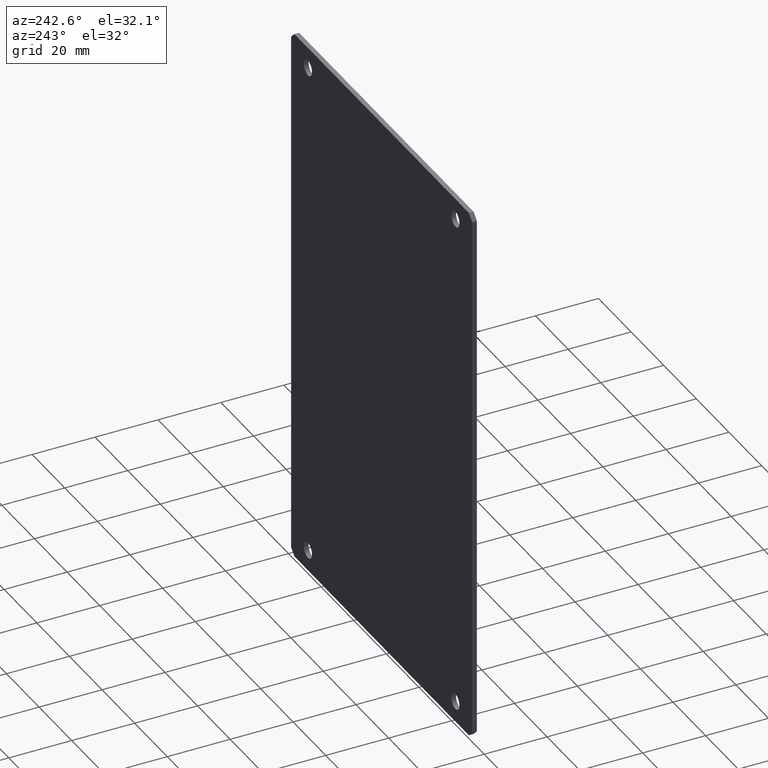
[diagram: clean part render]
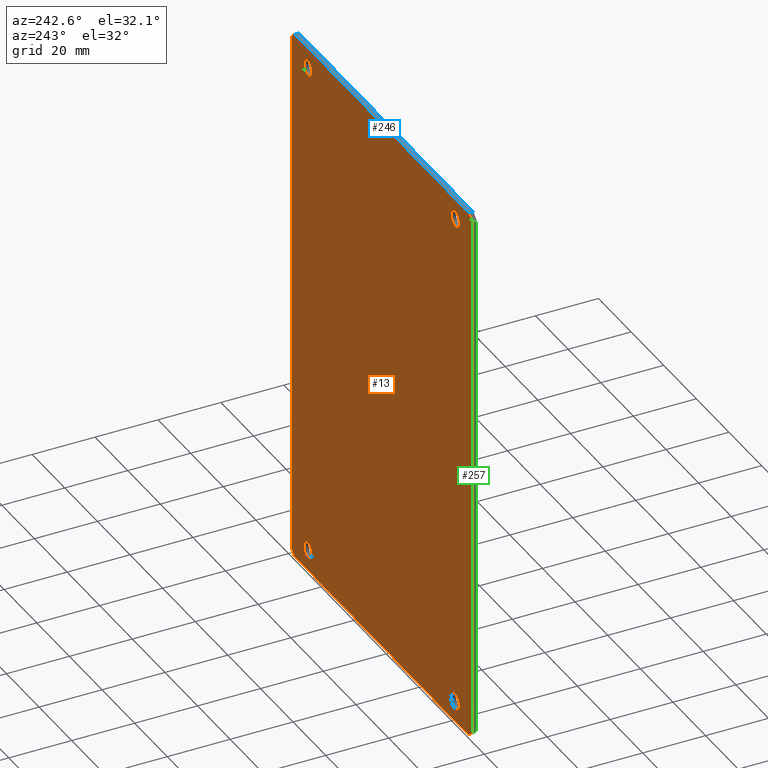
[diagram: same view with three faces highlighted in distinct colors, each labeled with its STEP entity id]
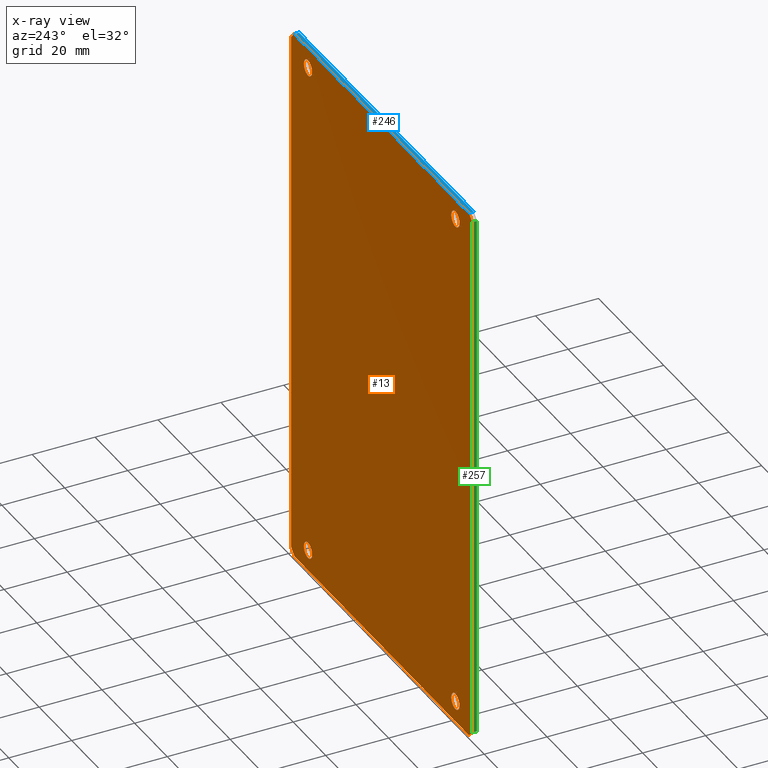
[diagram: x-ray of the same camera — body ghosted, the three highlighted faces saturated]
A machine part, auxiliary view with three faces highlighted in distinct colors.
The next image is the same camera in x-ray (body ghosted, the three faces saturated) — at least one of them is partly hidden behind the body in this view.
Their STEP definitions:

[orange] entity #13 — the highlighted planar face has unit normal (0, -1, 0).
#13 = ADVANCED_FACE ( 'NONE', ( #319, #318, #317, #316, #315 ), #311, .F. ) ;
#14 = EDGE_LOOP ( 'NONE', ( #15, #16 ) ) ;
#15 = ORIENTED_EDGE ( 'NONE', *, *, #35, .F. ) ;
#16 = ORIENTED_EDGE ( 'NONE', *, *, #17, .F. ) ;
#17 = EDGE_CURVE ( 'NONE', #37, #36, #144, .T. ) ;
#18 = EDGE_LOOP ( 'NONE', ( #181, #182 ) ) ;
#19 = ORIENTED_EDGE ( 'NONE', *, *, #64, .F. ) ;
#20 = ORIENTED_EDGE ( 'NONE', *, *, #21, .F. ) ;
#21 = EDGE_CURVE ( 'NONE', #65, #66, #140, .T. ) ;
#22 = EDGE_LOOP ( 'NONE', ( #23, #24 ) ) ;
#23 = ORIENTED_EDGE ( 'NONE', *, *, #41, .F. ) ;
#24 = ORIENTED_EDGE ( 'NONE', *, *, #25, .F. ) ;
#25 = EDGE_CURVE ( 'NONE', #54, #42, #135, .T. ) ;
#35 = EDGE_CURVE ( 'NONE', #36, #37, #96, .T. ) ;
#36 = VERTEX_POINT ( 'NONE', #91 ) ;
#37 = VERTEX_POINT ( 'NONE', #90 ) ;
#41 = EDGE_CURVE ( 'NONE', #42, #54, #83, .T. ) ;
#42 = VERTEX_POINT ( 'NONE', #78 ) ;
#54 = VERTEX_POINT ( 'NONE', #341 ) ;
#64 = EDGE_CURVE ( 'NONE', #66, #65, #357, .T. ) ;
#65 = VERTEX_POINT ( 'NONE', #352 ) ;
#66 = VERTEX_POINT ( 'NONE', #351 ) ;
#78 = CARTESIAN_POINT ( 'NONE',  ( -45.19999999999944900, 1.500000000000000000, 77.84999999999992300 ) ) ;
#79 = DIRECTION ( 'NONE',  ( 0.0000000000000000000, 0.0000000000000000000, -1.000000000000000000 ) ) ;
#80 = DIRECTION ( 'NONE',  ( -0.0000000000000000000, 1.000000000000000000, -0.0000000000000000000 ) ) ;
#81 = CARTESIAN_POINT ( 'NONE',  ( -45.19999999999944900, 1.500000000000000000, 80.34999999999992300 ) ) ;
#82 = AXIS2_PLACEMENT_3D ( 'NONE', #81, #80, #79 ) ;
#83 = CIRCLE ( 'NONE', #82, 2.500000000000002200 ) ;
#90 = CARTESIAN_POINT ( 'NONE',  ( 45.20000000000001000, 1.500000000000000000, 82.84999999999963900 ) ) ;
#91 = CARTESIAN_POINT ( 'NONE',  ( 45.20000000000001000, 1.500000000000000000, 77.84999999999959600 ) ) ;
#92 = DIRECTION ( 'NONE',  ( 0.0000000000000000000, 0.0000000000000000000, 1.000000000000000000 ) ) ;
#93 = DIRECTION ( 'NONE',  ( 0.0000000000000000000, 1.000000000000000000, 0.0000000000000000000 ) ) ;
#94 = CARTESIAN_POINT ( 'NONE',  ( 45.20000000000001000, 1.500000000000000000, 80.34999999999961100 ) ) ;
#95 = AXIS2_PLACEMENT_3D ( 'NONE', #94, #93, #92 ) ;
#96 = CIRCLE ( 'NONE', #95, 2.500000000000016000 ) ;
#131 = DIRECTION ( 'NONE',  ( 0.0000000000000000000, 0.0000000000000000000, -1.000000000000000000 ) ) ;
#132 = DIRECTION ( 'NONE',  ( -0.0000000000000000000, 1.000000000000000000, -0.0000000000000000000 ) ) ;
#133 = CARTESIAN_POINT ( 'NONE',  ( -45.19999999999944900, 1.500000000000000000, 80.34999999999992300 ) ) ;
#134 = AXIS2_PLACEMENT_3D ( 'NONE', #133, #132, #131 ) ;
#135 = CIRCLE ( 'NONE', #134, 2.500000000000002200 ) ;
#136 = DIRECTION ( 'NONE',  ( 0.0000000000000000000, 0.0000000000000000000, -1.000000000000000000 ) ) ;
#137 = DIRECTION ( 'NONE',  ( -0.0000000000000000000, 1.000000000000000000, -0.0000000000000000000 ) ) ;
#138 = CARTESIAN_POINT ( 'NONE',  ( 45.19999999999944900, 1.500000000000000000, -80.35000000000027900 ) ) ;
#139 = AXIS2_PLACEMENT_3D ( 'NONE', #138, #137, #136 ) ;
#140 = CIRCLE ( 'NONE', #139, 2.500000000000016000 ) ;
#141 = DIRECTION ( 'NONE',  ( 0.0000000000000000000, 0.0000000000000000000, 1.000000000000000000 ) ) ;
#142 = DIRECTION ( 'NONE',  ( 0.0000000000000000000, 1.000000000000000000, 0.0000000000000000000 ) ) ;
#143 = AXIS2_PLACEMENT_3D ( 'NONE', #312, #142, #141 ) ;
#144 = CIRCLE ( 'NONE', #143, 2.500000000000016000 ) ;
#145 = DIRECTION ( 'NONE',  ( 0.0000000000000000000, -0.0000000000000000000, -1.000000000000000000 ) ) ;
#146 = DIRECTION ( 'NONE',  ( 0.0000000000000000000, -1.000000000000000000, 0.0000000000000000000 ) ) ;
#154 = ORIENTED_EDGE ( 'NONE', *, *, #210, .T. ) ;
#178 = EDGE_CURVE ( 'NONE', #179, #180, #454, .T. ) ;
#179 = VERTEX_POINT ( 'NONE', #444 ) ;
#180 = VERTEX_POINT ( 'NONE', #443 ) ;
#181 = ORIENTED_EDGE ( 'NONE', *, *, #178, .F. ) ;
#182 = ORIENTED_EDGE ( 'NONE', *, *, #183, .F. ) ;
#183 = EDGE_CURVE ( 'NONE', #180, #179, #441, .T. ) ;
#184 = EDGE_LOOP ( 'NONE', ( #185, #189, #192, #154, #212, #215, #218, #221 ) ) ;
#185 = ORIENTED_EDGE ( 'NONE', *, *, #186, .T. ) ;
#186 = EDGE_CURVE ( 'NONE', #187, #188, #436, .T. ) ;
#187 = VERTEX_POINT ( 'NONE', #433 ) ;
#188 = VERTEX_POINT ( 'NONE', #432 ) ;
#189 = ORIENTED_EDGE ( 'NONE', *, *, #190, .T. ) ;
#190 = EDGE_CURVE ( 'NONE', #188, #191, #431, .T. ) ;
#191 = VERTEX_POINT ( 'NONE', #427 ) ;
#192 = ORIENTED_EDGE ( 'NONE', *, *, #193, .T. ) ;
#193 = EDGE_CURVE ( 'NONE', #191, #194, #426, .T. ) ;
#194 = VERTEX_POINT ( 'NONE', #390 ) ;
#210 = EDGE_CURVE ( 'NONE', #194, #211, #425, .T. ) ;
#211 = VERTEX_POINT ( 'NONE', #421 ) ;
#212 = ORIENTED_EDGE ( 'NONE', *, *, #213, .T. ) ;
#213 = EDGE_CURVE ( 'NONE', #211, #214, #420, .T. ) ;
#214 = VERTEX_POINT ( 'NONE', #416 ) ;
#215 = ORIENTED_EDGE ( 'NONE', *, *, #216, .T. ) ;
#216 = EDGE_CURVE ( 'NONE', #214, #217, #415, .T. ) ;
#217 = VERTEX_POINT ( 'NONE', #411 ) ;
#218 = ORIENTED_EDGE ( 'NONE', *, *, #219, .T. ) ;
#219 = EDGE_CURVE ( 'NONE', #217, #220, #410, .T. ) ;
#220 = VERTEX_POINT ( 'NONE', #406 ) ;
#221 = ORIENTED_EDGE ( 'NONE', *, *, #222, .T. ) ;
#222 = EDGE_CURVE ( 'NONE', #220, #187, #405, .T. ) ;
#223 = EDGE_LOOP ( 'NONE', ( #19, #20 ) ) ;
#311 = PLANE ( 'NONE',  #314 ) ;
#312 = CARTESIAN_POINT ( 'NONE',  ( 45.20000000000001000, 1.500000000000000000, 80.34999999999961100 ) ) ;
#313 = CARTESIAN_POINT ( 'NONE',  ( -140.5000000000003100, 1.500000000000000000, 8.743006318923107800E-013 ) ) ;
#314 = AXIS2_PLACEMENT_3D ( 'NONE', #313, #146, #145 ) ;
#315 = FACE_BOUND ( 'NONE', #22, .T. ) ;
#316 = FACE_BOUND ( 'NONE', #223, .T. ) ;
#317 = FACE_OUTER_BOUND ( 'NONE', #184, .T. ) ;
#318 = FACE_BOUND ( 'NONE', #18, .T. ) ;
#319 = FACE_BOUND ( 'NONE', #14, .T. ) ;
#341 = CARTESIAN_POINT ( 'NONE',  ( -45.19999999999944900, 1.500000000000000000, 82.84999999999992300 ) ) ;
#351 = CARTESIAN_POINT ( 'NONE',  ( 45.19999999999944900, 1.500000000000000000, -82.85000000000029300 ) ) ;
#352 = CARTESIAN_POINT ( 'NONE',  ( 45.19999999999944900, 1.500000000000000000, -77.85000000000026400 ) ) ;
#353 = DIRECTION ( 'NONE',  ( 0.0000000000000000000, 0.0000000000000000000, -1.000000000000000000 ) ) ;
#354 = DIRECTION ( 'NONE',  ( -0.0000000000000000000, 1.000000000000000000, -0.0000000000000000000 ) ) ;
#355 = CARTESIAN_POINT ( 'NONE',  ( 45.19999999999944900, 1.500000000000000000, -80.35000000000027900 ) ) ;
#356 = AXIS2_PLACEMENT_3D ( 'NONE', #355, #354, #353 ) ;
#357 = CIRCLE ( 'NONE', #356, 2.500000000000016000 ) ;
#390 = CARTESIAN_POINT ( 'NONE',  ( -53.49999999999938900, 1.500000000000000000, 87.00000000000000000 ) ) ;
#391 = DIRECTION ( 'NONE',  ( 0.7071067811865549000, 0.0000000000000000000, 0.7071067811865402500 ) ) ;
#392 = VECTOR ( 'NONE', #391, 1000.000000000000100 ) ;
#393 = CARTESIAN_POINT ( 'NONE',  ( -55.49999999999941700, 1.500000000000000000, 85.00000000000000000 ) ) ;
#402 = DIRECTION ( 'NONE',  ( -1.000000000000000000, 0.0000000000000000000, 3.372172738347457500E-015 ) ) ;
#403 = VECTOR ( 'NONE', #402, 1000.000000000000000 ) ;
#404 = CARTESIAN_POINT ( 'NONE',  ( 53.49999999999938900, 1.500000000000000000, -87.00000000000035500 ) ) ;
#405 = LINE ( 'NONE', #404, #403 ) ;
#406 = CARTESIAN_POINT ( 'NONE',  ( 53.49999999999938900, 1.500000000000000000, -87.00000000000035500 ) ) ;
#407 = DIRECTION ( 'NONE',  ( -0.7071067811865549000, 0.0000000000000000000, -0.7071067811865401300 ) ) ;
#408 = VECTOR ( 'NONE', #407, 1000.000000000000000 ) ;
#409 = CARTESIAN_POINT ( 'NONE',  ( 55.49999999999940300, 1.500000000000000000, -85.00000000000038400 ) ) ;
#410 = LINE ( 'NONE', #409, #408 ) ;
#411 = CARTESIAN_POINT ( 'NONE',  ( 55.49999999999940300, 1.500000000000000000, -85.00000000000038400 ) ) ;
#412 = DIRECTION ( 'NONE',  ( -3.510263974917773900E-015, 0.0000000000000000000, -1.000000000000000000 ) ) ;
#413 = VECTOR ( 'NONE', #412, 1000.000000000000000 ) ;
#414 = CARTESIAN_POINT ( 'NONE',  ( 55.50000000000000000, 1.500000000000000000, 84.99999999999963100 ) ) ;
#415 = LINE ( 'NONE', #414, #413 ) ;
#416 = CARTESIAN_POINT ( 'NONE',  ( 55.50000000000000000, 1.500000000000000000, 84.99999999999963100 ) ) ;
#417 = DIRECTION ( 'NONE',  ( 0.7071067811865474600, -0.0000000000000000000, -0.7071067811865474600 ) ) ;
#418 = VECTOR ( 'NONE', #417, 1000.000000000000100 ) ;
#419 = CARTESIAN_POINT ( 'NONE',  ( 55.50000000000000000, 1.500000000000000000, 84.99999999999963100 ) ) ;
#420 = LINE ( 'NONE', #419, #418 ) ;
#421 = CARTESIAN_POINT ( 'NONE',  ( 53.49999999999963800, 1.500000000000000000, 87.00000000000000000 ) ) ;
#422 = DIRECTION ( 'NONE',  ( 1.000000000000000000, -0.0000000000000000000, -0.0000000000000000000 ) ) ;
#423 = VECTOR ( 'NONE', #422, 1000.000000000000000 ) ;
#424 = CARTESIAN_POINT ( 'NONE',  ( 53.49999999999963800, 1.500000000000000000, 87.00000000000000000 ) ) ;
#425 = LINE ( 'NONE', #424, #423 ) ;
#426 = LINE ( 'NONE', #393, #392 ) ;
#427 = CARTESIAN_POINT ( 'NONE',  ( -55.49999999999941700, 1.500000000000000000, 85.00000000000000000 ) ) ;
#428 = DIRECTION ( 'NONE',  ( 3.428629928989454100E-015, -0.0000000000000000000, 1.000000000000000000 ) ) ;
#429 = VECTOR ( 'NONE', #428, 1000.000000000000000 ) ;
#430 = CARTESIAN_POINT ( 'NONE',  ( -55.49999999999941700, 1.500000000000000000, 85.00000000000000000 ) ) ;
#431 = LINE ( 'NONE', #430, #429 ) ;
#432 = CARTESIAN_POINT ( 'NONE',  ( -55.50000000000000000, 1.500000000000000000, -84.99999999999997200 ) ) ;
#433 = CARTESIAN_POINT ( 'NONE',  ( -53.50000000000000000, 1.500000000000000000, -87.00000000000000000 ) ) ;
#434 = DIRECTION ( 'NONE',  ( -0.7071067811865451300, -0.0000000000000000000, 0.7071067811865500200 ) ) ;
#435 = VECTOR ( 'NONE', #434, 1000.000000000000100 ) ;
#436 = LINE ( 'NONE', #442, #435 ) ;
#437 = DIRECTION ( 'NONE',  ( 0.0000000000000000000, 0.0000000000000000000, 1.000000000000000000 ) ) ;
#438 = DIRECTION ( 'NONE',  ( 0.0000000000000000000, 1.000000000000000000, 0.0000000000000000000 ) ) ;
#439 = CARTESIAN_POINT ( 'NONE',  ( -45.20000000000000300, 1.500000000000000000, -80.34999999999998000 ) ) ;
#440 = AXIS2_PLACEMENT_3D ( 'NONE', #439, #438, #437 ) ;
#441 = CIRCLE ( 'NONE', #440, 2.500000000000002200 ) ;
#442 = CARTESIAN_POINT ( 'NONE',  ( -55.50000000000000000, 1.500000000000000000, -84.99999999999997200 ) ) ;
#443 = CARTESIAN_POINT ( 'NONE',  ( -45.20000000000000300, 1.500000000000000000, -77.84999999999998000 ) ) ;
#444 = CARTESIAN_POINT ( 'NONE',  ( -45.20000000000000300, 1.500000000000000000, -82.84999999999998000 ) ) ;
#445 = DIRECTION ( 'NONE',  ( 0.0000000000000000000, 0.0000000000000000000, 1.000000000000000000 ) ) ;
#446 = DIRECTION ( 'NONE',  ( 0.0000000000000000000, 1.000000000000000000, 0.0000000000000000000 ) ) ;
#447 = CARTESIAN_POINT ( 'NONE',  ( -45.20000000000000300, 1.500000000000000000, -80.34999999999998000 ) ) ;
#448 = AXIS2_PLACEMENT_3D ( 'NONE', #447, #446, #445 ) ;
#454 = CIRCLE ( 'NONE', #448, 2.500000000000002200 ) ;

[blue] entity #246 — the highlighted planar face has unit normal (0, 0, -1).
#194 = VERTEX_POINT ( 'NONE', #390 ) ;
#210 = EDGE_CURVE ( 'NONE', #194, #211, #425, .T. ) ;
#211 = VERTEX_POINT ( 'NONE', #421 ) ;
#228 = VERTEX_POINT ( 'NONE', #583 ) ;
#230 = EDGE_CURVE ( 'NONE', #231, #228, #582, .T. ) ;
#231 = VERTEX_POINT ( 'NONE', #578 ) ;
#243 = EDGE_CURVE ( 'NONE', #194, #231, #568, .T. ) ;
#246 = ADVANCED_FACE ( 'NONE', ( #564 ), #562, .F. ) ;
#247 = EDGE_LOOP ( 'NONE', ( #248, #249, #251, #252 ) ) ;
#248 = ORIENTED_EDGE ( 'NONE', *, *, #230, .T. ) ;
#249 = ORIENTED_EDGE ( 'NONE', *, *, #250, .F. ) ;
#250 = EDGE_CURVE ( 'NONE', #211, #228, #563, .T. ) ;
#251 = ORIENTED_EDGE ( 'NONE', *, *, #210, .F. ) ;
#252 = ORIENTED_EDGE ( 'NONE', *, *, #243, .T. ) ;
#390 = CARTESIAN_POINT ( 'NONE',  ( -53.49999999999938900, 1.500000000000000000, 87.00000000000000000 ) ) ;
#421 = CARTESIAN_POINT ( 'NONE',  ( 53.49999999999963800, 1.500000000000000000, 87.00000000000000000 ) ) ;
#422 = DIRECTION ( 'NONE',  ( 1.000000000000000000, -0.0000000000000000000, -0.0000000000000000000 ) ) ;
#423 = VECTOR ( 'NONE', #422, 1000.000000000000000 ) ;
#424 = CARTESIAN_POINT ( 'NONE',  ( 53.49999999999963800, 1.500000000000000000, 87.00000000000000000 ) ) ;
#425 = LINE ( 'NONE', #424, #423 ) ;
#555 = DIRECTION ( 'NONE',  ( -0.0000000000000000000, -1.000000000000000000, -0.0000000000000000000 ) ) ;
#556 = VECTOR ( 'NONE', #555, 1000.000000000000000 ) ;
#557 = CARTESIAN_POINT ( 'NONE',  ( 53.49999999999963800, 1.500000000000000000, 87.00000000000000000 ) ) ;
#558 = DIRECTION ( 'NONE',  ( -1.000000000000000000, 0.0000000000000000000, -0.0000000000000000000 ) ) ;
#559 = DIRECTION ( 'NONE',  ( 0.0000000000000000000, 0.0000000000000000000, -1.000000000000000000 ) ) ;
#560 = CARTESIAN_POINT ( 'NONE',  ( 53.49999999999963800, 1.500000000000000000, 87.00000000000000000 ) ) ;
#561 = AXIS2_PLACEMENT_3D ( 'NONE', #560, #559, #558 ) ;
#562 = PLANE ( 'NONE',  #561 ) ;
#563 = LINE ( 'NONE', #557, #556 ) ;
#564 = FACE_OUTER_BOUND ( 'NONE', #247, .T. ) ;
#565 = DIRECTION ( 'NONE',  ( -0.0000000000000000000, -1.000000000000000000, -0.0000000000000000000 ) ) ;
#566 = VECTOR ( 'NONE', #565, 1000.000000000000000 ) ;
#567 = CARTESIAN_POINT ( 'NONE',  ( -53.49999999999938900, 1.500000000000000000, 87.00000000000000000 ) ) ;
#568 = LINE ( 'NONE', #567, #566 ) ;
#578 = CARTESIAN_POINT ( 'NONE',  ( -53.49999999999938900, 0.0000000000000000000, 87.00000000000000000 ) ) ;
#579 = DIRECTION ( 'NONE',  ( 1.000000000000000000, -0.0000000000000000000, -0.0000000000000000000 ) ) ;
#580 = VECTOR ( 'NONE', #579, 1000.000000000000000 ) ;
#581 = CARTESIAN_POINT ( 'NONE',  ( 53.49999999999963800, 0.0000000000000000000, 87.00000000000000000 ) ) ;
#582 = LINE ( 'NONE', #581, #580 ) ;
#583 = CARTESIAN_POINT ( 'NONE',  ( 53.49999999999963800, 0.0000000000000000000, 87.00000000000000000 ) ) ;

[green] entity #257 — the highlighted planar face has unit normal (1, 0, -0).
#8 = VERTEX_POINT ( 'NONE', #325 ) ;
#188 = VERTEX_POINT ( 'NONE', #432 ) ;
#190 = EDGE_CURVE ( 'NONE', #188, #191, #431, .T. ) ;
#191 = VERTEX_POINT ( 'NONE', #427 ) ;
#209 = EDGE_CURVE ( 'NONE', #188, #8, #370, .T. ) ;
#234 = VERTEX_POINT ( 'NONE', #573 ) ;
#236 = EDGE_CURVE ( 'NONE', #8, #234, #572, .T. ) ;
#257 = ADVANCED_FACE ( 'NONE', ( #519 ), #517, .F. ) ;
#258 = EDGE_LOOP ( 'NONE', ( #259, #260, #262, #263 ) ) ;
#259 = ORIENTED_EDGE ( 'NONE', *, *, #236, .T. ) ;
#260 = ORIENTED_EDGE ( 'NONE', *, *, #261, .F. ) ;
#261 = EDGE_CURVE ( 'NONE', #191, #234, #518, .T. ) ;
#262 = ORIENTED_EDGE ( 'NONE', *, *, #190, .F. ) ;
#263 = ORIENTED_EDGE ( 'NONE', *, *, #209, .T. ) ;
#325 = CARTESIAN_POINT ( 'NONE',  ( -55.50000000000000000, 0.0000000000000000000, -84.99999999999997200 ) ) ;
#364 = DIRECTION ( 'NONE',  ( -0.0000000000000000000, -1.000000000000000000, -0.0000000000000000000 ) ) ;
#365 = VECTOR ( 'NONE', #364, 1000.000000000000000 ) ;
#366 = CARTESIAN_POINT ( 'NONE',  ( -55.50000000000000000, 1.500000000000000000, -84.99999999999997200 ) ) ;
#370 = LINE ( 'NONE', #366, #365 ) ;
#427 = CARTESIAN_POINT ( 'NONE',  ( -55.49999999999941700, 1.500000000000000000, 85.00000000000000000 ) ) ;
#428 = DIRECTION ( 'NONE',  ( 3.428629928989454100E-015, -0.0000000000000000000, 1.000000000000000000 ) ) ;
#429 = VECTOR ( 'NONE', #428, 1000.000000000000000 ) ;
#430 = CARTESIAN_POINT ( 'NONE',  ( -55.49999999999941700, 1.500000000000000000, 85.00000000000000000 ) ) ;
#431 = LINE ( 'NONE', #430, #429 ) ;
#432 = CARTESIAN_POINT ( 'NONE',  ( -55.50000000000000000, 1.500000000000000000, -84.99999999999997200 ) ) ;
#510 = DIRECTION ( 'NONE',  ( -0.0000000000000000000, -1.000000000000000000, -0.0000000000000000000 ) ) ;
#511 = VECTOR ( 'NONE', #510, 1000.000000000000000 ) ;
#512 = CARTESIAN_POINT ( 'NONE',  ( -55.49999999999941700, 1.500000000000000000, 85.00000000000000000 ) ) ;
#513 = DIRECTION ( 'NONE',  ( -3.428629928989454100E-015, 0.0000000000000000000, -1.000000000000000000 ) ) ;
#514 = DIRECTION ( 'NONE',  ( 1.000000000000000000, 0.0000000000000000000, -3.428629928989454100E-015 ) ) ;
#515 = CARTESIAN_POINT ( 'NONE',  ( -55.49999999999941700, 1.500000000000000000, 85.00000000000000000 ) ) ;
#516 = AXIS2_PLACEMENT_3D ( 'NONE', #515, #514, #513 ) ;
#517 = PLANE ( 'NONE',  #516 ) ;
#518 = LINE ( 'NONE', #512, #511 ) ;
#519 = FACE_OUTER_BOUND ( 'NONE', #258, .T. ) ;
#569 = DIRECTION ( 'NONE',  ( 3.428629928989454100E-015, -0.0000000000000000000, 1.000000000000000000 ) ) ;
#570 = VECTOR ( 'NONE', #569, 1000.000000000000000 ) ;
#571 = CARTESIAN_POINT ( 'NONE',  ( -55.49999999999941700, 0.0000000000000000000, 85.00000000000000000 ) ) ;
#572 = LINE ( 'NONE', #571, #570 ) ;
#573 = CARTESIAN_POINT ( 'NONE',  ( -55.49999999999941700, 0.0000000000000000000, 85.00000000000000000 ) ) ;